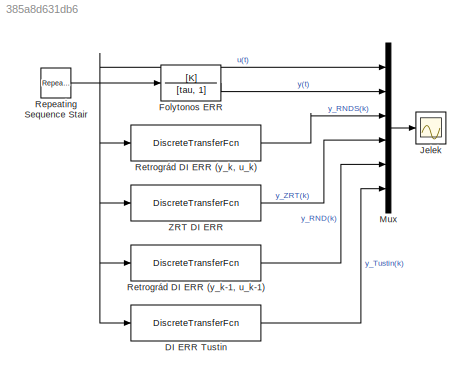
MODEL slx_385a8d631db6
KIND model
CONFIG InitFcn = K = 1;\ntau = 1;\n\nT_S = 50e-3;
BLOCK [DiscreteTransferFcn] DI ERR Tustin
  Denominator = [(T_S+2*tau), T_S-2*tau]
  InputPortMap = u0
  Numerator = [K*T_S, K*T_S]
  Ports = [1, 1]
  SampleTime = T_S
BLOCK [TransferFcn] Folytonos ERR
  Denominator = [tau, 1]
  Numerator = [K]
BLOCK [Scope] Jelek
  DataFormat = StructureWithTime
  Floating = off
  LegendLocations = 0.92198     0.85417     0.05625     0.10048
  LimitDataPoints = off
  NumInputPorts = 1
  Ports = [1]
  SampleTime = 0
  ShowLegends = on
BLOCK [Mux] Mux
  DisplayOption = bar
  Inputs = 6
  Ports = [6, 1]
BLOCK [Reference] Repeating Sequence Stair  REF=simulink/Sources/Repeating
Sequence
Stair
  ConRadixGroup = Best Precision: Vector-wise
  LockScale = off
  OutDataType = fixdt(0,8)
  OutDataTypeStr = double
  OutMax = []
  OutMin = []
  OutScaling = 2^-12
  OutValues = [1, 3, -4, 2, -1]
  OutputDataTypeScalingMode = double
  Ports = [0, 1]
  SourceBlock = simulink/Sources/Repeating\nSequence\nStair
  SourceType = Repeating Sequence Stair
  tsamp = 2
BLOCK [DiscreteTransferFcn] Retrográd DI ERR (y_k, u_k)
  Denominator = [(1+tau/T_S), -tau/T_S]
  InputPortMap = u0
  Numerator = [K, 0]
  Ports = [1, 1]
  SampleTime = T_S
BLOCK [DiscreteTransferFcn] Retrográd DI ERR (y_k-1, u_k-1)
  Denominator = [1, T_S/tau-1]
  InputPortMap = u0
  Numerator = [K*T_S/tau]
  Ports = [1, 1]
  SampleTime = T_S
BLOCK [DiscreteTransferFcn] ZRT DI ERR
  Denominator = [1, -exp(-T_S/tau)]
  InputPortMap = u0
  Numerator = [K*(1-exp(-T_S/tau))]
  Ports = [1, 1]
  SampleTime = T_S
LINE DI ERR Tustin:1 -> Mux:6
LINE Folytonos ERR:1 -> Mux:2
LINE Mux:1 -> Jelek:1
NET Repeating Sequence Stair:1 -> DI ERR Tustin:1, Folytonos ERR:1, Mux:1, Retrográd DI ERR (y_k, u_k):1, Retrográd DI ERR (y_k-1, u_k-1):1, ZRT DI ERR:1
LINE Retrográd DI ERR (y_k, u_k):1 -> Mux:3
LINE Retrográd DI ERR (y_k-1, u_k-1):1 -> Mux:5
LINE ZRT DI ERR:1 -> Mux:4
note: NET lines group one-source signal fan-out (src -> all destinations, sorted); 1:1 wires keep LINE
